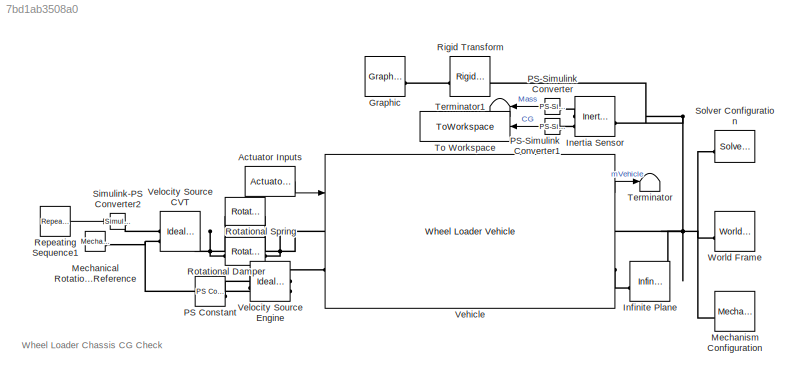
MODEL slx_7bd1ab3508a0
KIND model
CONFIG AbsTol = 1e-3
CONFIG EnableMultiTasking = on
CONFIG FixedStep = auto
CONFIG InitFcn = if(exist('cg_loc'))\n    cg_offset = cg_loc.Data;\nelse\n    cg_offset = [0 0 0];\nend
CONFIG MaxStep = auto
CONFIG MinStep = auto
CONFIG RelTol = 1e-3
CONFIG SampleTimeConstraint = Unconstrained
CONFIG SolverName = VariableStepAuto
CONFIG StartTime = 0.0
CONFIG StopTime = 1e-4
BLOCK [Reference] Actuator Inputs  REF=sm_wheel_loader_lib/Actuator Inputs  (lib defined in slx_2f13f0afc9e9, slx_78fdec152d5c)
  AttributesFormatString = %<popup_impl>
  NameLocation = top
  SourceBlock = sm_wheel_loader_lib/Actuator Inputs
BLOCK [Reference] Graphic  REF=sm_lib/Body Elements/Graphic
  SourceBlock = sm_lib/Body Elements/Graphic
  SourceType = Graphic
BLOCK [Reference] Inertia Sensor  REF=sm_lib/Body Elements/Inertia Sensor
  SourceBlock = sm_lib/Body Elements/Inertia Sensor
  SourceType = Inertia Sensor
BLOCK [Reference] Infinite Plane  REF=sm_lib/Curves and Surfaces/Infinite Plane
  NameLocation = top
  SourceBlock = sm_lib/Curves and Surfaces/Infinite Plane
  SourceType = Infinite Plane
BLOCK [Reference] Mechanical Rotational Reference  REF=fl_lib/Mechanical/Rotational Elements/Mechanical
Rotational Reference
  SourceBlock = fl_lib/Mechanical/Rotational Elements/Mechanical\nRotational Reference
  SourceType = Mechanical\nRotational Reference
BLOCK [Reference] Mechanism Configuration  REF=sm_lib/Utilities/Mechanism
Configuration
  SourceBlock = sm_lib/Utilities/Mechanism\nConfiguration
  SourceType = Mechanism\nConfiguration
BLOCK [Reference] PS Constant  REF=fl_lib/Physical Signals/Sources/PS Constant
  SourceBlock = fl_lib/Physical Signals/Sources/PS Constant
  SourceType = PS Constant
BLOCK [Reference] PS-Simulink Converter  REF=nesl_utility/PS-Simulink
Converter
  SourceBlock = nesl_utility/PS-Simulink\nConverter
  SourceType = PS-Simulink\nConverter
BLOCK [Reference] PS-Simulink Converter1  REF=nesl_utility/PS-Simulink
Converter
  SourceBlock = nesl_utility/PS-Simulink\nConverter
  SourceType = PS-Simulink\nConverter
BLOCK [Reference] Repeating Sequence1  REF=simulink/Sources/Repeating
Sequence
  SourceBlock = simulink/Sources/Repeating\nSequence
  SourceType = Repeating table
BLOCK [Reference] Rigid Transform  REF=sm_lib/Frames and
Transforms/Rigid
Transform
  SourceBlock = sm_lib/Frames and\nTransforms/Rigid\nTransform
  SourceType = Rigid\nTransform
BLOCK [Reference] Rotational Damper  REF=fl_lib/Mechanical/Rotational Elements/Rotational Damper
  SourceBlock = fl_lib/Mechanical/Rotational Elements/Rotational Damper
  SourceType = Rotational Damper
BLOCK [Reference] Rotational Spring  REF=fl_lib/Mechanical/Rotational Elements/Rotational Spring
  SourceBlock = fl_lib/Mechanical/Rotational Elements/Rotational Spring
  SourceType = Rotational Spring
BLOCK [Reference] Simulink-PS Converter2  REF=nesl_utility/Simulink-PS
Converter
  SourceBlock = nesl_utility/Simulink-PS\nConverter
  SourceType = Simulink-PS\nConverter
BLOCK [Reference] Solver Configuration  REF=nesl_utility/Solver
Configuration
  SourceBlock = nesl_utility/Solver\nConfiguration
  SourceType = Solver\nConfiguration
BLOCK [Terminator] Terminator
BLOCK [Terminator] Terminator1
BLOCK [ToWorkspace] To Workspace
  FixptAsFi = on
  MaxDataPoints = 1
  SampleTime = -1
  SaveFormat = Timeseries
  VariableName = cg_loc
BLOCK [Reference] Vehicle  REF=sm_wheel_loader_lib/Wheel Loader Vehicle  (lib defined in slx_2f13f0afc9e9, slx_78fdec152d5c)
  SourceBlock = sm_wheel_loader_lib/Wheel Loader Vehicle
  SourceType = Wheel Loader Vehicle
BLOCK [Reference] Velocity Source CVT  REF=fl_lib/Mechanical/Mechanical Sources/Ideal Angular
Velocity Source
  NameLocation = top
  SourceBlock = fl_lib/Mechanical/Mechanical Sources/Ideal Angular\nVelocity Source
  SourceType = Ideal Angular\nVelocity Source
BLOCK [Reference] Velocity Source Engine  REF=fl_lib/Mechanical/Mechanical Sources/Ideal Angular
Velocity Source
  SourceBlock = fl_lib/Mechanical/Mechanical Sources/Ideal Angular\nVelocity Source
  SourceType = Ideal Angular\nVelocity Source
BLOCK [Reference] World Frame  REF=sm_lib/Frames and
Transforms/World Frame
  SourceBlock = sm_lib/Frames and\nTransforms/World Frame
  SourceType = World Frame
ANNOTATION (root): Wheel Loader Chassis CG Check
LINE Actuator Inputs:1 -> Vehicle:1
LINE PS-Simulink Converter1:1 -> To Workspace:1
LINE PS-Simulink Converter:1 -> Terminator1:1
LINE Repeating Sequence1:1 -> Simulink-PS Converter2:1
LINE Vehicle:1 -> Terminator:1
PLINE Graphic:RConn1 -- Rigid Transform:RConn1
PNET net1: Inertia Sensor:LConn1 -- Infinite Plane:LConn1 -- Mechanism Configuration:RConn1 -- Rigid Transform:LConn1 -- Solver Configuration:RConn1 -- Vehicle:RConn1 -- World Frame:RConn1
PLINE Inertia Sensor:RConn1 -- PS-Simulink Converter:LConn1
PLINE Inertia Sensor:RConn2 -- PS-Simulink Converter1:LConn1
PLINE Infinite Plane:RConn1 -- Vehicle:RConn2
PNET net2: Mechanical Rotational Reference:LConn1 -- Velocity Source CVT:RConn2 -- Velocity Source Engine:RConn2
PLINE PS Constant:RConn1 -- Velocity Source Engine:RConn1
PNET net3: Rotational Damper:LConn1 -- Rotational Spring:LConn1 -- Vehicle:LConn1
PNET net4: Rotational Damper:RConn1 -- Rotational Spring:RConn1 -- Velocity Source CVT:LConn1
PLINE Simulink-PS Converter2:RConn1 -- Velocity Source CVT:RConn1
PLINE Vehicle:LConn2 -- Velocity Source Engine:LConn1
note: PNET lines group multi-terminal physical nets as a canonical sorted terminal list (undirected conserving connections); 2-terminal nets keep the pairwise PLINE form
